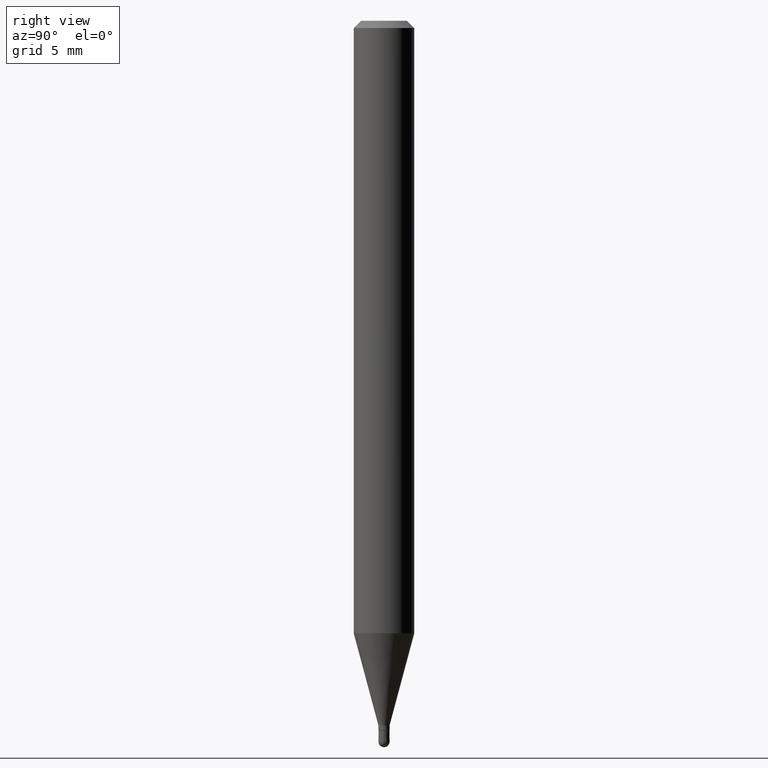
[diagram: clean part render]
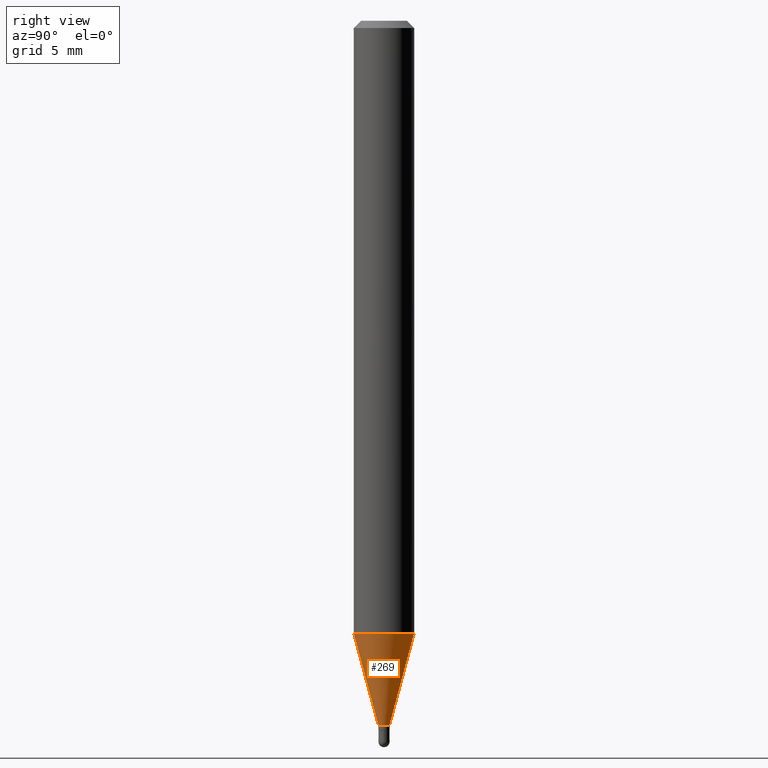
[diagram: same view with one face highlighted and labeled with its STEP entity id]
A machine part, right view. The second image highlights one B-rep face of the part: STEP entity #269.
In plain terms, the highlighted conical surface has half-angle 15 deg.
Its self-contained STEP definition (entity closure, byte-faithful):
#9 = CARTESIAN_POINT ( 'NONE',  ( 3.558155548032866696E-29, -5.080107589137887116E-15, -1.454999999999999849 ) ) ;
#24 = CARTESIAN_POINT ( 'NONE',  ( 3.092698447269238654E-29, -4.415557622705228023E-15, -1.264665408813987479 ) ) ;
#45 = DIRECTION ( 'NONE',  ( -6.982962677686265133E-15, -1.000000000000000000, 0.000000000000000000 ) ) ;
#52 = FACE_OUTER_BOUND ( 'NONE', #200, .T. ) ;
#79 = DIRECTION ( 'NONE',  ( -6.982962677686265133E-15, -1.000000000000000000, 0.000000000000000000 ) ) ;
#87 = CARTESIAN_POINT ( 'NONE',  ( 8.171241461244653802E-17, 0.01149999999999484421, -1.454999999999999849 ) ) ;
#88 = VERTEX_POINT ( 'NONE', #267 ) ;
#92 = CIRCLE ( 'NONE', #427, 0.01149999999999992348 ) ;
#145 = CONICAL_SURFACE ( 'NONE', #272, 0.01149999999999992348, 0.2617993877991502960 ) ;
#159 = CARTESIAN_POINT ( 'NONE',  ( -4.364351673553607559E-16, -0.06250000000000441314, -1.264665408813987257 ) ) ;
#162 = VERTEX_POINT ( 'NONE', #210 ) ;
#165 = EDGE_CURVE ( 'NONE', #448, #191, #253, .T. ) ;
#178 = CARTESIAN_POINT ( 'NONE',  ( -8.030407079335594572E-17, -0.01150000000000500275, -1.454999999999999849 ) ) ;
#191 = VERTEX_POINT ( 'NONE', #159 ) ;
#199 = VECTOR ( 'NONE', #318, 39.37007874015748143 ) ;
#200 = EDGE_LOOP ( 'NONE', ( #447, #406, #423, #377 ) ) ;
#210 = CARTESIAN_POINT ( 'NONE',  ( 4.440892098500932831E-16, 0.06249999999999557992, -1.264665408813987924 ) ) ;
#214 = CIRCLE ( 'NONE', #353, 0.06250000000000000000 ) ;
#219 = DIRECTION ( 'NONE',  ( -2.445467730606780965E-29, 3.491482879132568905E-15, 1.000000000000000000 ) ) ;
#239 = DIRECTION ( 'NONE',  ( 1.839019923739600710E-15, 0.2588190451025250138, 0.9659258262890670910 ) ) ;
#253 = LINE ( 'NONE', #371, #199 ) ;
#254 = EDGE_CURVE ( 'NONE', #88, #162, #440, .T. ) ;
#265 = CARTESIAN_POINT ( 'NONE',  ( 3.558155548032866696E-29, -5.080107589137887116E-15, -1.454999999999999849 ) ) ;
#267 = CARTESIAN_POINT ( 'NONE',  ( 2.629008122312701386E-16, 0.01149999999999484421, -1.454999999999999849 ) ) ;
#269 = ADVANCED_FACE ( 'NONE', ( #52 ), #145, .T. ) ;
#272 = AXIS2_PLACEMENT_3D ( 'NONE', #9, #316, #45 ) ;
#299 = DIRECTION ( 'NONE',  ( -2.445467730606780965E-29, 3.491482879132568905E-15, 1.000000000000000000 ) ) ;
#316 = DIRECTION ( 'NONE',  ( -2.445467730606780965E-29, 3.491482879132568905E-15, 1.000000000000000000 ) ) ;
#318 = DIRECTION ( 'NONE',  ( -1.807323732225330534E-15, -0.2588190451025182415, 0.9659258262890689783 ) ) ;
#338 = DIRECTION ( 'NONE',  ( -6.982962677686265922E-15, -1.000000000000000000, 4.370956789862821150E-15 ) ) ;
#353 = AXIS2_PLACEMENT_3D ( 'NONE', #24, #299, #338 ) ;
#367 = EDGE_CURVE ( 'NONE', #448, #88, #92, .T. ) ;
#371 = CARTESIAN_POINT ( 'NONE',  ( -8.030407079335594572E-17, -0.01150000000000500275, -1.454999999999999849 ) ) ;
#377 = ORIENTED_EDGE ( 'NONE', *, *, #165, .F. ) ;
#382 = EDGE_CURVE ( 'NONE', #191, #162, #214, .T. ) ;
#395 = VECTOR ( 'NONE', #239, 39.37007874015748143 ) ;
#406 = ORIENTED_EDGE ( 'NONE', *, *, #254, .T. ) ;
#423 = ORIENTED_EDGE ( 'NONE', *, *, #382, .F. ) ;
#427 = AXIS2_PLACEMENT_3D ( 'NONE', #265, #219, #79 ) ;
#440 = LINE ( 'NONE', #87, #395 ) ;
#447 = ORIENTED_EDGE ( 'NONE', *, *, #367, .T. ) ;
#448 = VERTEX_POINT ( 'NONE', #178 ) ;